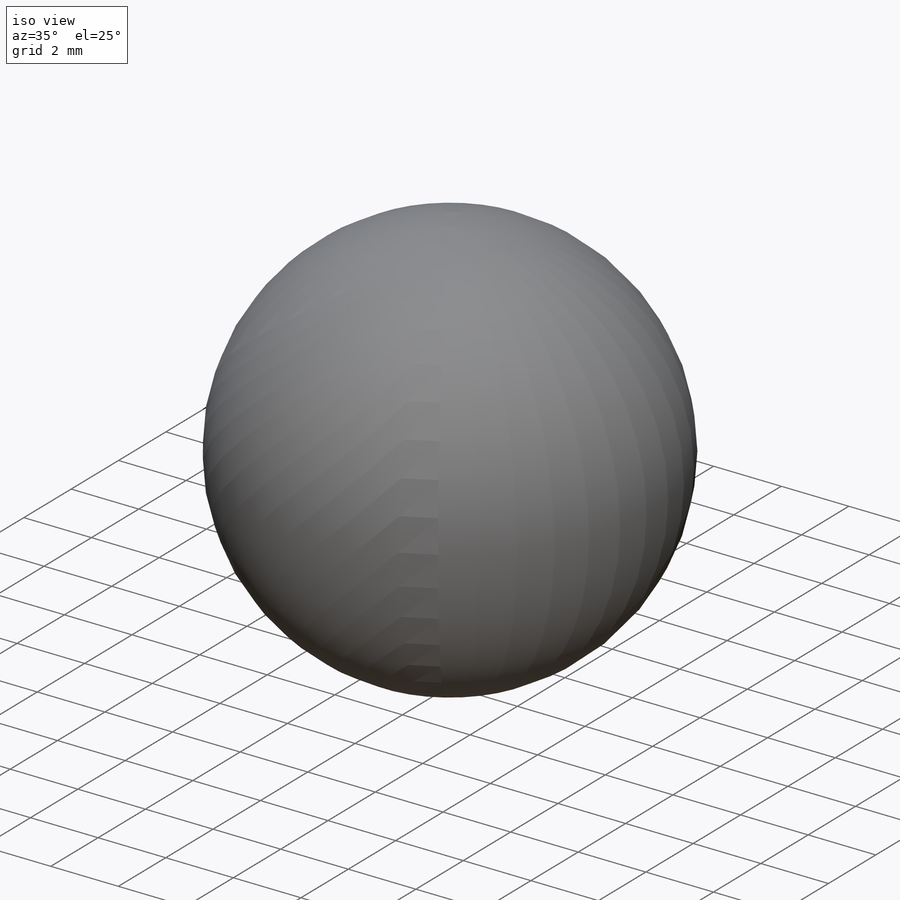
[diagram: iso view]
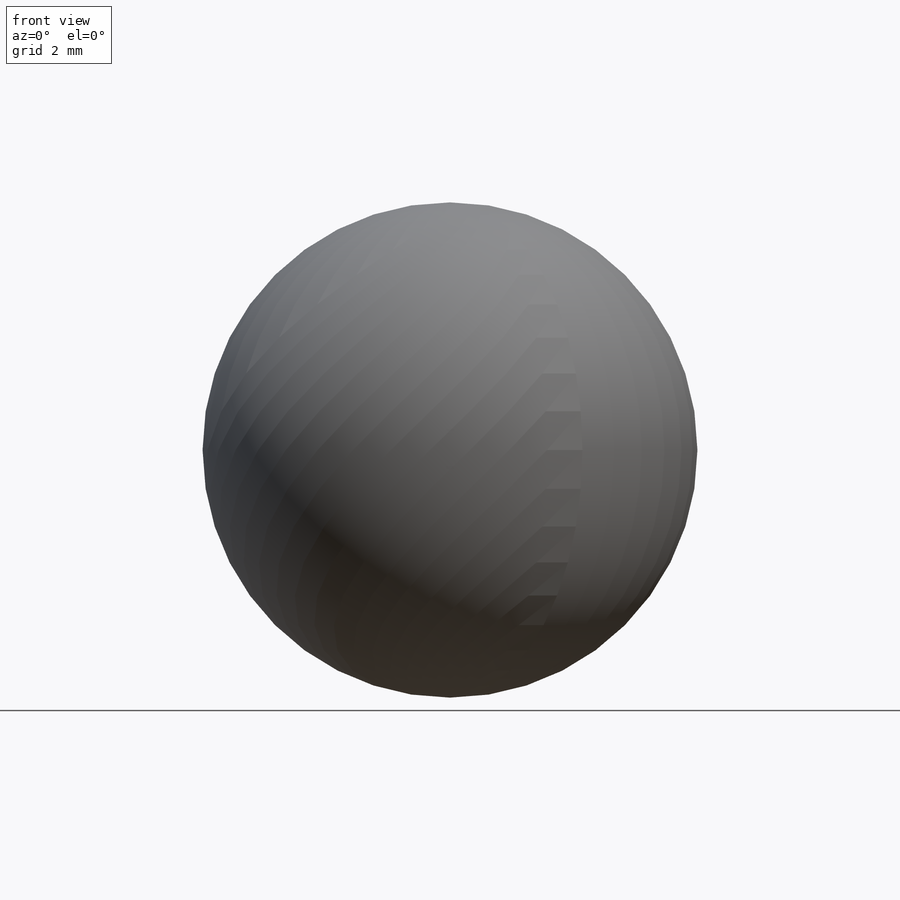
[diagram: front view]
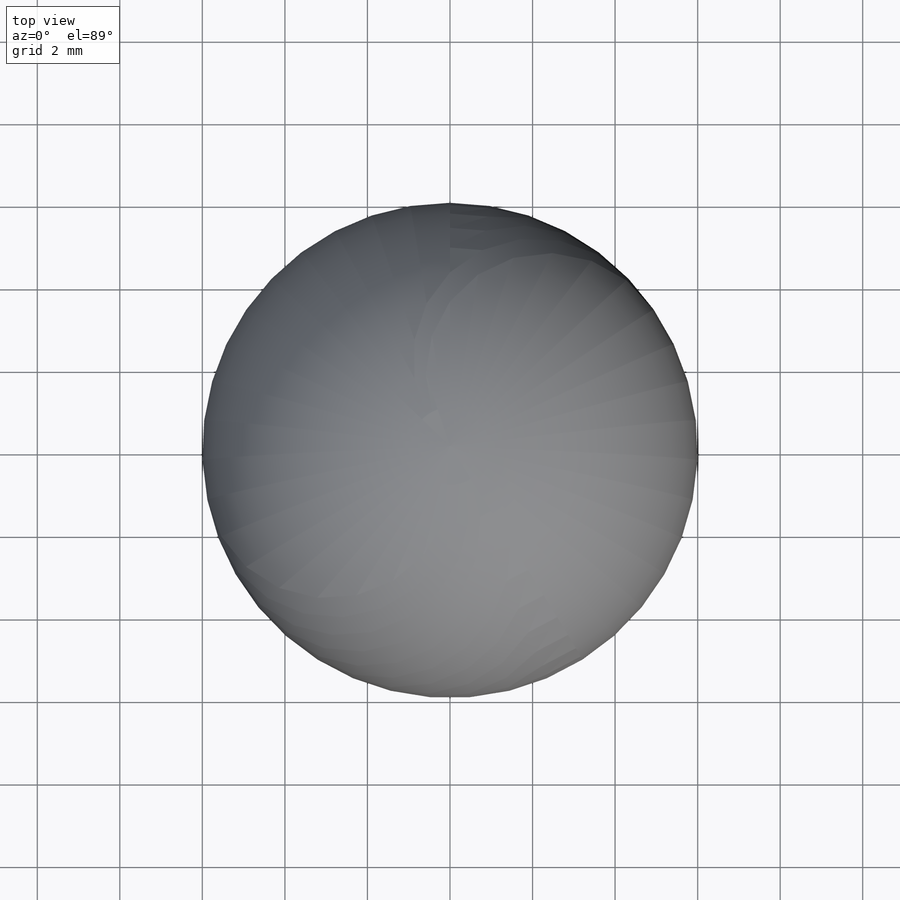
[diagram: top view]
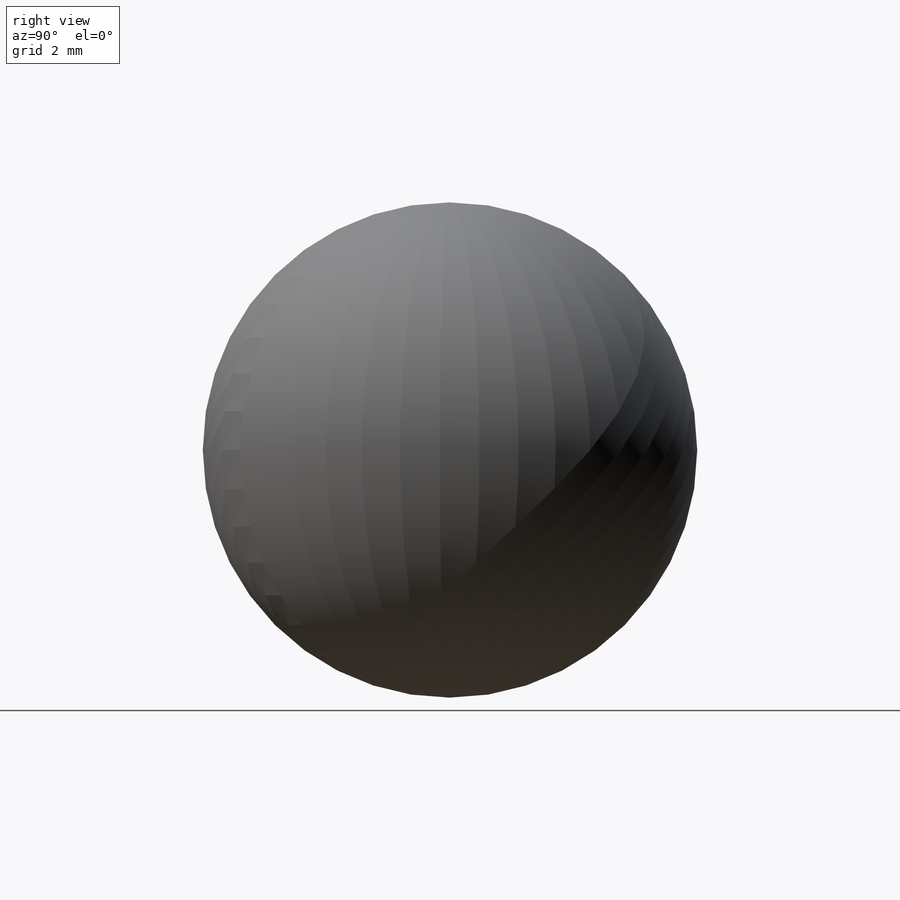
[diagram: right view]
SOLIDWORKS PART (.sldprt)
format: sldprt  version: not decoded by parser v0  size: 150,528 bytes
history: native  units: mm
features: plane x3, sketch x3, cut_extrude x2, material x1, revolve x1 (+10 scaffold rows collapsed)
feature tree (20):
  scaffold x10  (default folders/planes/origin — collapsed)
  material  "Material <not specified>"
  plane  "Vorne"
  plane  "Oben"
  plane  "Rechts"
  sketch  "Skizze2"  dims[D1=12.0mm]
  revolve  "Kugel"  Angle=360deg
  sketch  "Skizze3"  dims[D1=3.0mm D2=5.0mm D3=1.0mm]
  cut_extrude  "Achse 1"  Depth=10mm
  sketch  "Skizze4"  dims[D1=3.0mm D2=5.0mm D3=1.0mm D4=1.0mm]
  cut_extrude  "Achse 2"  Depth=10mm
decode coverage: 6 of 6 modeling features carry decoded parameters
note: suppression state not decoded; provenance and decode notes live in map.json
